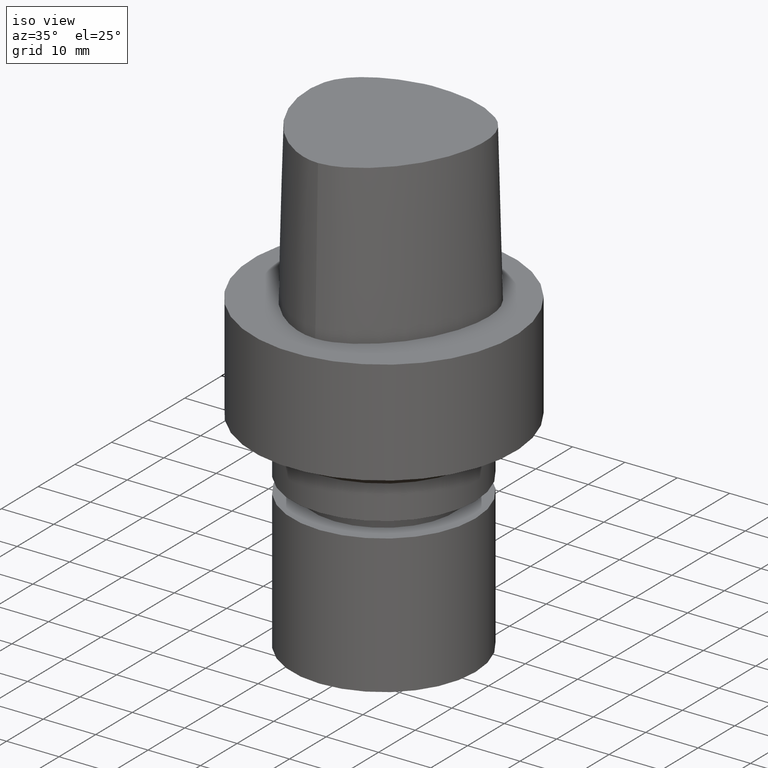
[diagram: clean part render]
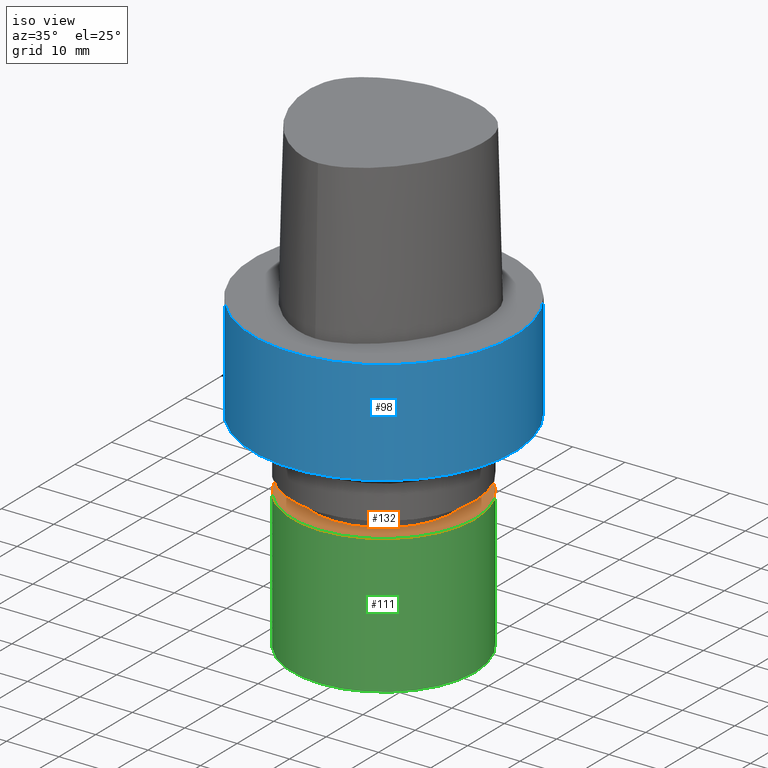
[diagram: same view with three faces highlighted in distinct colors, each labeled with its STEP entity id]
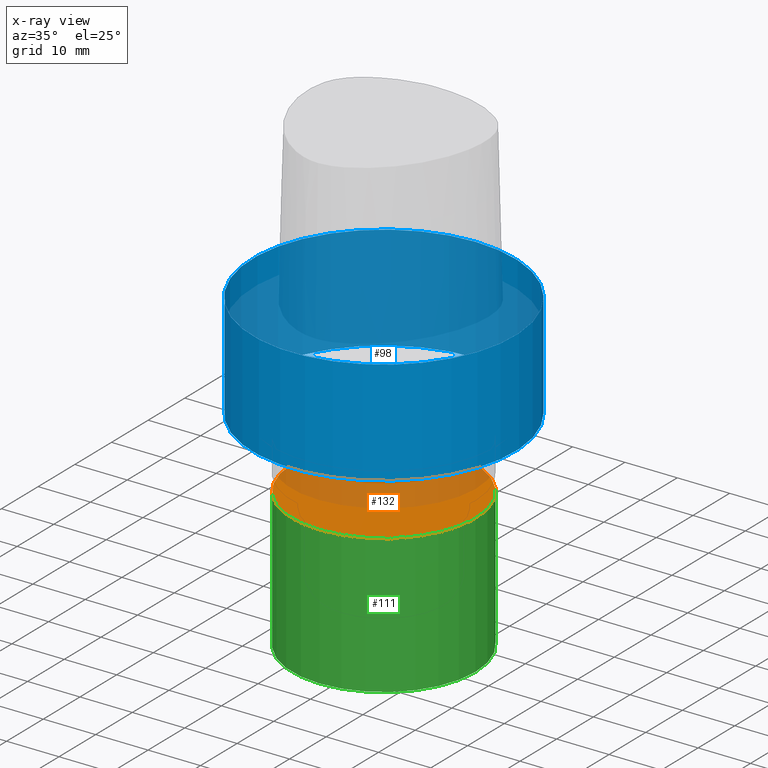
[diagram: x-ray of the same camera — body ghosted, the three highlighted faces saturated]
A machine part, iso view with three faces highlighted in distinct colors.
The next image is the same camera in x-ray (body ghosted, the three faces saturated) — at least one of them is partly hidden behind the body in this view.
Their STEP definitions:

[orange] entity #132 — the highlighted planar face has unit normal (-0, -0, 1).
#125=EDGE_CURVE('Unnamed[1]',#259,#259,#260,.T.);
#132=ADVANCED_FACE('Unnamed[1]',(#268),#269,.T.);
#259=VERTEX_POINT('',#943);
#260=CIRCLE('',#944,17.5);
#268=FACE_OUTER_BOUND('',#958,.T.);
#269=PLANE('',#959);
#943=CARTESIAN_POINT('',(2.05128432290318E-015,17.5,-33.5000152587891));
#944=AXIS2_PLACEMENT_3D('',#1086,#1087,#1088);
#958=EDGE_LOOP('',(#1093));
#959=AXIS2_PLACEMENT_3D('',#1094,#1095,#1096);
#1086=CARTESIAN_POINT('',(2.05128432290318E-015,4.10256864580636E-015,-33.5000152587891));
#1087=DIRECTION('',(6.12323399573677E-017,1.22464679914735E-016,-1.0));
#1088=DIRECTION('',(-1.23259516440783E-032,1.0,1.22464679914735E-016));
#1093=ORIENTED_EDGE('',*,*,#125,.F.);
#1094=CARTESIAN_POINT('',(2.05128432290318E-015,8.75000000000001,-33.5000152587891));
#1095=DIRECTION('',(-6.12323399573677E-017,-1.22464679914735E-016,1.0));
#1096=DIRECTION('',(1.23259516440783E-032,-1.0,-1.22464679914735E-016));

[blue] entity #98 — the highlighted cylindrical surface (bore or boss wall) has radius 25 mm, axis along (0, 0, -1).
#98=ADVANCED_FACE('Unnamed[1]',(#217,#218),#219,.T.);
#106=EDGE_CURVE('Unnamed[1]',#231,#231,#232,.T.);
#137=EDGE_CURVE('Unnamed[1]',#276,#276,#277,.T.);
#217=FACE_BOUND('',#412,.T.);
#218=FACE_BOUND('',#413,.T.);
#219=CYLINDRICAL_SURFACE('',#414,25.0);
#231=VERTEX_POINT('',#429);
#232=CIRCLE('',#430,25.0);
#276=VERTEX_POINT('',#968);
#277=CIRCLE('',#969,25.0);
#412=EDGE_LOOP('',(#1041));
#413=EDGE_LOOP('',(#1042));
#414=AXIS2_PLACEMENT_3D('',#1043,#1044,#1045);
#429=CARTESIAN_POINT('',(-3.08148791101958E-031,25.0,3.06161699786838E-015));
#430=AXIS2_PLACEMENT_3D('',#1058,#1059,#1060);
#968=CARTESIAN_POINT('',(1.22464679914735E-015,25.0,-20.0));
#969=AXIS2_PLACEMENT_3D('',#1103,#1104,#1105);
#1041=ORIENTED_EDGE('',*,*,#137,.F.);
#1042=ORIENTED_EDGE('',*,*,#106,.T.);
#1043=CARTESIAN_POINT('',(6.12323399573677E-016,1.22464679914735E-015,-10.0));
#1044=DIRECTION('',(6.12323399573677E-017,1.22464679914735E-016,-1.0));
#1045=DIRECTION('',(-1.23259516440783E-032,1.0,1.22464679914735E-016));
#1058=CARTESIAN_POINT('',(0.0,0.0,0.0));
#1059=DIRECTION('',(6.12323399573677E-017,1.22464679914735E-016,-1.0));
#1060=DIRECTION('',(-1.23259516440783E-032,1.0,1.22464679914735E-016));
#1103=CARTESIAN_POINT('',(1.22464679914735E-015,2.44929359829471E-015,-20.0));
#1104=DIRECTION('',(6.12323399573677E-017,1.22464679914735E-016,-1.0));
#1105=DIRECTION('',(-1.23259516440783E-032,1.0,1.22464679914735E-016));

[green] entity #111 — the highlighted cylindrical surface (bore or boss wall) has radius 17.5 mm, axis along (0, 0, -1).
#111=ADVANCED_FACE('Unnamed[1]',(#238,#239),#240,.T.);
#125=EDGE_CURVE('Unnamed[1]',#259,#259,#260,.T.);
#146=EDGE_CURVE('Unnamed[1]',#288,#288,#289,.T.);
#238=FACE_BOUND('',#438,.T.);
#239=FACE_BOUND('',#439,.T.);
#240=CYLINDRICAL_SURFACE('',#440,17.5);
#259=VERTEX_POINT('',#943);
#260=CIRCLE('',#944,17.5);
#288=VERTEX_POINT('',#983);
#289=CIRCLE('',#984,17.5);
#438=EDGE_LOOP('',(#1065));
#439=EDGE_LOOP('',(#1066));
#440=AXIS2_PLACEMENT_3D('',#1067,#1068,#1069);
#943=CARTESIAN_POINT('',(2.05128432290318E-015,17.5,-33.5000152587891));
#944=AXIS2_PLACEMENT_3D('',#1086,#1087,#1088);
#983=CARTESIAN_POINT('',(3.67394039744206E-015,17.5,-59.9999999999999));
#984=AXIS2_PLACEMENT_3D('',#1113,#1114,#1115);
#1065=ORIENTED_EDGE('',*,*,#146,.F.);
#1066=ORIENTED_EDGE('',*,*,#125,.T.);
#1067=CARTESIAN_POINT('',(2.86261236017262E-015,5.72522472034523E-015,-46.7500076293945));
#1068=DIRECTION('',(6.12323399573677E-017,1.22464679914735E-016,-1.0));
#1069=DIRECTION('',(-1.23259516440783E-032,1.0,1.22464679914735E-016));
#1086=CARTESIAN_POINT('',(2.05128432290318E-015,4.10256864580636E-015,-33.5000152587891));
#1087=DIRECTION('',(6.12323399573677E-017,1.22464679914735E-016,-1.0));
#1088=DIRECTION('',(-1.23259516440783E-032,1.0,1.22464679914735E-016));
#1113=CARTESIAN_POINT('',(3.67394039744206E-015,7.34788079488411E-015,-59.9999999999999));
#1114=DIRECTION('',(6.12323399573677E-017,1.22464679914735E-016,-1.0));
#1115=DIRECTION('',(-1.23259516440783E-032,1.0,1.22464679914735E-016));